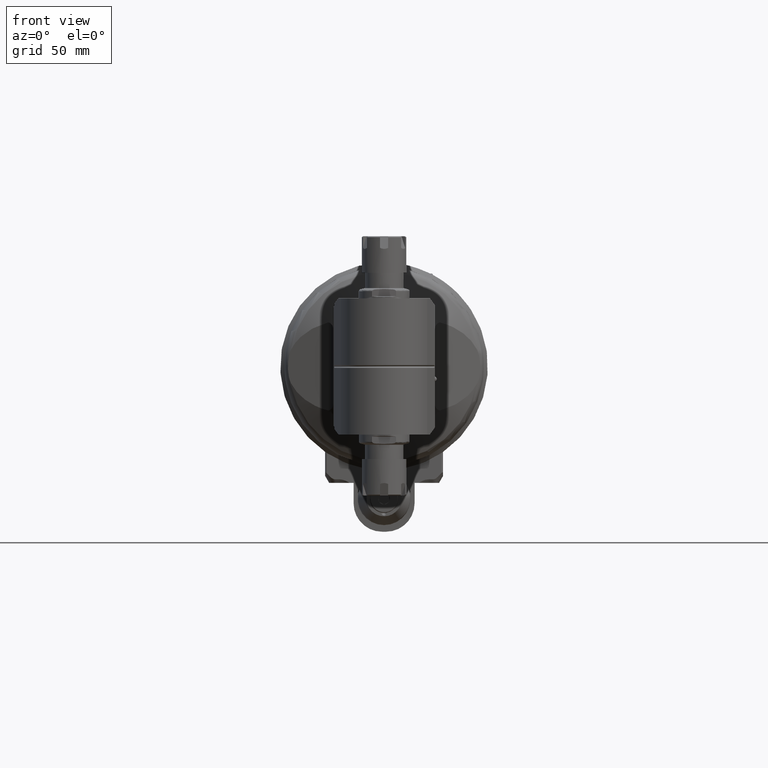
[diagram: clean part render]
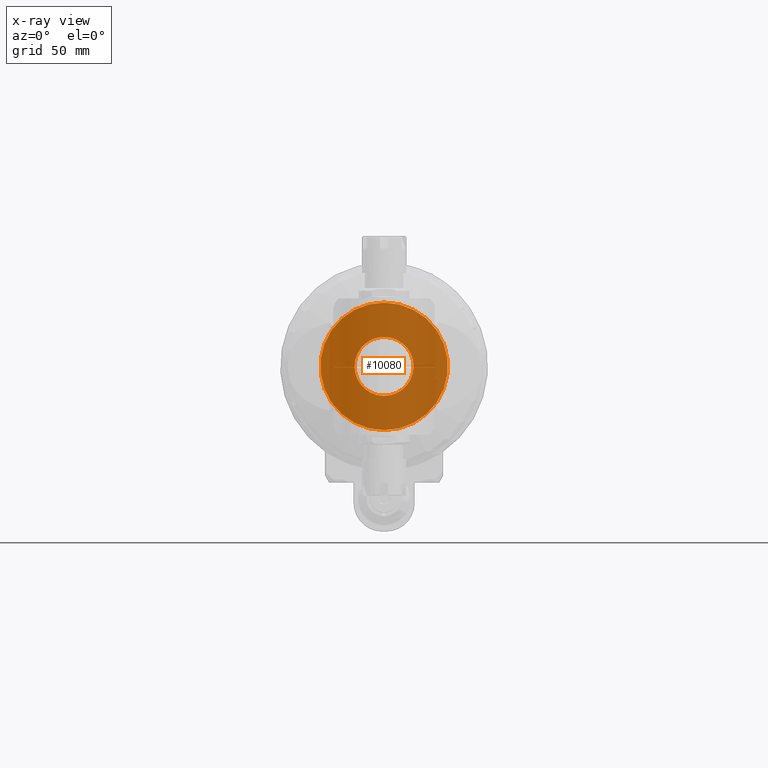
[diagram: x-ray — body ghosted, one internal face saturated and labeled with its STEP entity id]
A machine part, front view, then the same camera in x-ray: the body is ghosted and one INTERNAL B-rep face — a face not visible from any outside direction — is saturated and labeled: STEP entity #10080.
In plain terms, the highlighted planar face has unit normal (0, 1, 0).
Its self-contained STEP definition (entity closure, byte-faithful):
#276=B_SPLINE_CURVE_WITH_KNOTS('',3,(#16864,#16865,#16866,#16867,#16868,
#16869,#16870,#16871,#16872,#16873,#16874,#16875,#16876,#16877,#16878,#16879,
#16880,#16881,#16882,#16883),.UNSPECIFIED.,.F.,.F.,(4,1,1,1,1,1,1,1,1,1,
1,1,1,1,1,1,1,4),(0.,0.05882352941176,0.1176470588235,0.1764705882353,0.2352941176471,
0.2941176470588,0.3529411764706,0.4117647058824,0.4705882352941,0.5294117647059,
0.5882352941176,0.6470588235294,0.7058823529412,0.7647058823529,0.8235294117647,
0.8823529411765,0.9411764705882,1.),.UNSPECIFIED.);
#277=B_SPLINE_CURVE_WITH_KNOTS('',3,(#16884,#16885,#16886,#16887,#16888,
#16889,#16890,#16891,#16892,#16893,#16894,#16895,#16896,#16897,#16898,#16899,
#16900,#16901,#16902,#16903),.UNSPECIFIED.,.F.,.F.,(4,1,1,1,1,1,1,1,1,1,
1,1,1,1,1,1,1,4),(0.,0.05882352941176,0.1176470588235,0.1764705882353,0.2352941176471,
0.2941176470588,0.3529411764706,0.4117647058824,0.4705882352941,0.5294117647059,
0.5882352941176,0.6470588235294,0.7058823529412,0.7647058823529,0.8235294117647,
0.8823529411765,0.9411764705882,1.),.UNSPECIFIED.);
#561=FACE_BOUND('',#1808,.T.);
#736=PLANE('',#10996);
#1176=FACE_OUTER_BOUND('',#1807,.T.);
#1807=EDGE_LOOP('',(#8040));
#1808=EDGE_LOOP('',(#8041,#8042));
#3802=CIRCLE('',#10997,31.35);
#4527=VERTEX_POINT('',#16860);
#4528=VERTEX_POINT('',#16862);
#4529=VERTEX_POINT('',#16863);
#5781=EDGE_CURVE('',#4527,#4527,#3802,.T.);
#5782=EDGE_CURVE('',#4528,#4529,#276,.T.);
#5783=EDGE_CURVE('',#4529,#4528,#277,.T.);
#8040=ORIENTED_EDGE('',*,*,#5781,.T.);
#8041=ORIENTED_EDGE('',*,*,#5782,.T.);
#8042=ORIENTED_EDGE('',*,*,#5783,.T.);
#10080=ADVANCED_FACE('',(#1176,#561),#736,.F.);
#10996=AXIS2_PLACEMENT_3D('',#16859,#12980,#12981);
#10997=AXIS2_PLACEMENT_3D('',#16861,#12982,#12983);
#12980=DIRECTION('center_axis',(0.,1.,0.));
#12981=DIRECTION('ref_axis',(0.,0.,1.));
#12982=DIRECTION('center_axis',(0.,-1.,0.));
#12983=DIRECTION('ref_axis',(0.,0.,-1.));
#16859=CARTESIAN_POINT('Origin',(1.347113091385E-14,32.,0.));
#16860=CARTESIAN_POINT('',(-4.14064332999959E-18,32.,-31.35));
#16861=CARTESIAN_POINT('Origin',(1.61232300003015E-20,32.,0.));
#16862=CARTESIAN_POINT('',(14.5,32.,0.));
#16863=CARTESIAN_POINT('',(-14.5,32.,0.));
#16864=CARTESIAN_POINT('Ctrl Pts',(14.5,32.,0.));
#16865=CARTESIAN_POINT('Ctrl Pts',(14.49888450858,32.,-0.9016584831045));
#16866=CARTESIAN_POINT('Ctrl Pts',(14.33554001612,32.,-2.671468599625));
#16867=CARTESIAN_POINT('Ctrl Pts',(13.59869267255,32.,-5.268829729588));
#16868=CARTESIAN_POINT('Ctrl Pts',(12.39548495214,32.,-7.679337301994));
#16869=CARTESIAN_POINT('Ctrl Pts',(10.79223327368,32.,-9.806914598114));
#16870=CARTESIAN_POINT('Ctrl Pts',(8.79091572937801,32.,-11.63683328154));
#16871=CARTESIAN_POINT('Ctrl Pts',(6.49471575809501,32.,-13.0569736024));
#16872=CARTESIAN_POINT('Ctrl Pts',(3.97808609475701,32.,-14.02996751605));
#16873=CARTESIAN_POINT('Ctrl Pts',(1.33202254429501,32.,-14.52162747338));
#16874=CARTESIAN_POINT('Ctrl Pts',(-1.35501022133299,32.,-14.5192889571));
#16875=CARTESIAN_POINT('Ctrl Pts',(-3.99329212023499,32.,-14.02494121093));
#16876=CARTESIAN_POINT('Ctrl Pts',(-6.49596555590199,32.,-13.05524697636));
#16877=CARTESIAN_POINT('Ctrl Pts',(-8.77911230056899,32.,-11.64458652108));
#16878=CARTESIAN_POINT('Ctrl Pts',(-10.77438007515,32.,-9.825801018785));
#16879=CARTESIAN_POINT('Ctrl Pts',(-12.3799103196,32.,-7.704440983411));
#16880=CARTESIAN_POINT('Ctrl Pts',(-13.58956697316,32.,-5.293415155813));
#16881=CARTESIAN_POINT('Ctrl Pts',(-14.33354425829,32.,-2.687238459729));
#16882=CARTESIAN_POINT('Ctrl Pts',(-14.49853883461,32.,-0.9076552997688));
#16883=CARTESIAN_POINT('Ctrl Pts',(-14.5,32.,0.));
#16884=CARTESIAN_POINT('Ctrl Pts',(-14.5,32.,0.));
#16885=CARTESIAN_POINT('Ctrl Pts',(-14.49888450858,32.,0.9016584831045));
#16886=CARTESIAN_POINT('Ctrl Pts',(-14.33554001612,32.,2.671468599625));
#16887=CARTESIAN_POINT('Ctrl Pts',(-13.59869267255,32.,5.268829729588));
#16888=CARTESIAN_POINT('Ctrl Pts',(-12.39548495214,32.,7.679337301994));
#16889=CARTESIAN_POINT('Ctrl Pts',(-10.79223327368,32.,9.806914598114));
#16890=CARTESIAN_POINT('Ctrl Pts',(-8.79091572937799,32.,11.63683328154));
#16891=CARTESIAN_POINT('Ctrl Pts',(-6.49471575809499,32.,13.0569736024));
#16892=CARTESIAN_POINT('Ctrl Pts',(-3.97808609475699,32.,14.02996751605));
#16893=CARTESIAN_POINT('Ctrl Pts',(-1.33202254429499,32.,14.52162747338));
#16894=CARTESIAN_POINT('Ctrl Pts',(1.35501022133301,32.,14.5192889571));
#16895=CARTESIAN_POINT('Ctrl Pts',(3.99329212023501,32.,14.02494121093));
#16896=CARTESIAN_POINT('Ctrl Pts',(6.49596555590201,32.,13.05524697636));
#16897=CARTESIAN_POINT('Ctrl Pts',(8.77911230056901,32.,11.64458652108));
#16898=CARTESIAN_POINT('Ctrl Pts',(10.77438007515,32.,9.825801018785));
#16899=CARTESIAN_POINT('Ctrl Pts',(12.3799103196,32.,7.704440983411));
#16900=CARTESIAN_POINT('Ctrl Pts',(13.58956697316,32.,5.293415155813));
#16901=CARTESIAN_POINT('Ctrl Pts',(14.33354425829,32.,2.687238459729));
#16902=CARTESIAN_POINT('Ctrl Pts',(14.49853883461,32.,0.9076552997688));
#16903=CARTESIAN_POINT('Ctrl Pts',(14.5,32.,0.));